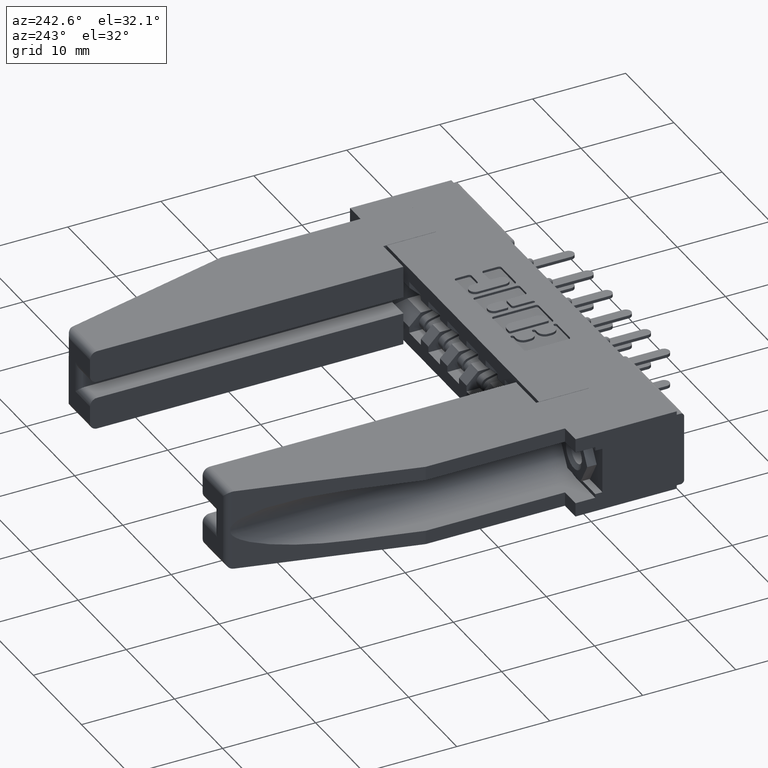
[diagram: clean part render]
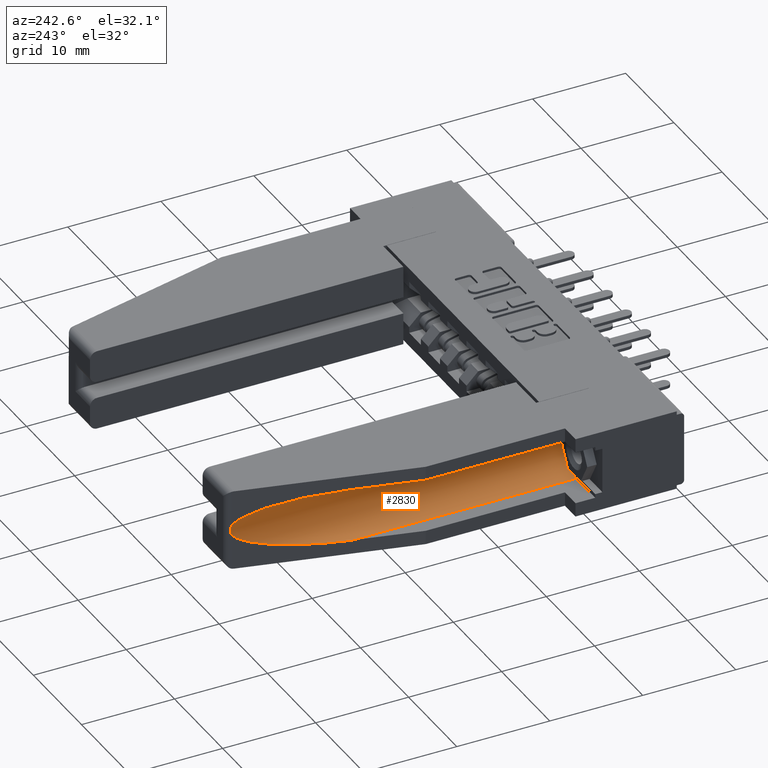
[diagram: same view with one face highlighted and labeled with its STEP entity id]
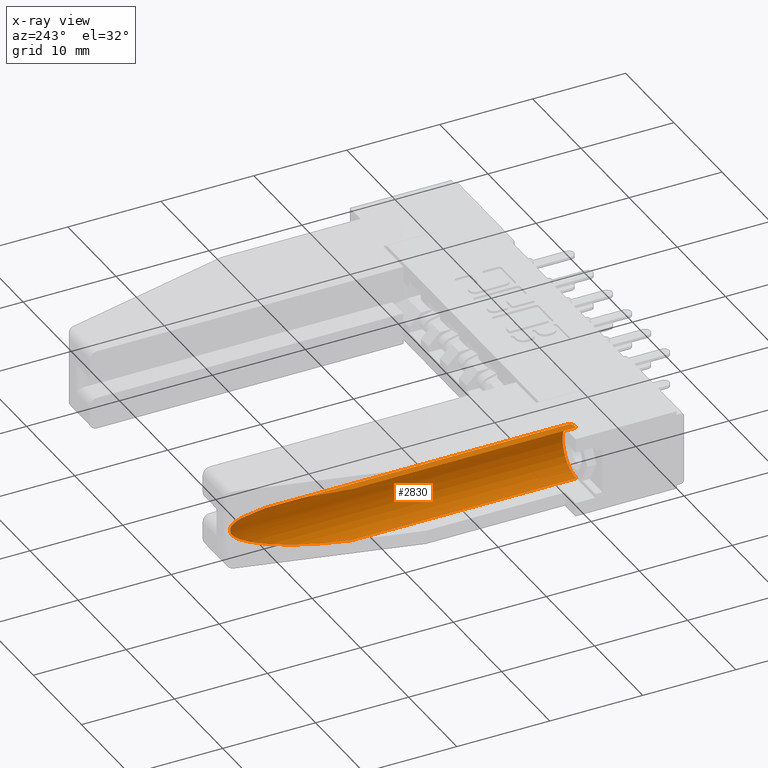
[diagram: x-ray of the same camera — body ghosted, the highlighted face saturated]
A machine part, auxiliary view. The second image highlights one B-rep face of the part: STEP entity #2830.
The next image is the same camera in x-ray: the body ghosted, the highlighted face saturated — about 0% of this face is hidden behind the body in this view.
In plain terms, the highlighted cylindrical surface (edge-blend (fillet) strip) has radius 2.8575 mm, axis along (0, 1, 0).
Its self-contained STEP definition (entity closure, byte-faithful):
#39 = VECTOR ( 'NONE', #8353, 39.37007874015748100 ) ;
#211 = CARTESIAN_POINT ( 'NONE',  ( 0.2545055604987769800, 1.483130650670717600, -0.2483528604797780900 ) ) ;
#362 = VERTEX_POINT ( 'NONE', #955 ) ;
#403 = CARTESIAN_POINT ( 'NONE',  ( 0.2665402951778601500, 1.530919410688852400, -0.1563644579457770200 ) ) ;
#581 = CARTESIAN_POINT ( 'NONE',  ( 0.2653722146876837400, 1.527184654139258400, -0.1932766899444302300 ) ) ;
#955 = CARTESIAN_POINT ( 'NONE',  ( 0.2653722146876837400, 1.527184654139258400, -0.1497233100555697400 ) ) ;
#1461 = CARTESIAN_POINT ( 'NONE',  ( 0.2659676665268745400, 1.529598648082111800, -0.1902587226409276400 ) ) ;
#2208 = EDGE_LOOP ( 'NONE', ( #5024, #3596, #8116, #13106, #12281, #12126 ) ) ;
#2214 = AXIS2_PLACEMENT_3D ( 'NONE', #4562, #4650, #5507 ) ;
#2235 = DIRECTION ( 'NONE',  ( -0.0000000000000000000, 1.000000000000000000, -0.0000000000000000000 ) ) ;
#2518 =( BOUNDED_CURVE ( )  B_SPLINE_CURVE ( 3, ( #10164, #6280, #9148, #10289 ),
 .UNSPECIFIED., .F., .F. ) 
 B_SPLINE_CURVE_WITH_KNOTS ( ( 4, 4 ),
 ( 4.712388980384689700, 6.088385046520238900 ),
 .UNSPECIFIED. ) 
 CURVE ( )  GEOMETRIC_REPRESENTATION_ITEM ( )  RATIONAL_B_SPLINE_CURVE ( ( 1.000000000000000000, 0.8483458633392274600, 0.8483458633392274600, 1.000000000000000000 ) ) 
 REPRESENTATION_ITEM ( '' )  );
#2605 = CARTESIAN_POINT ( 'NONE',  ( 0.2653722146876837400, 1.527184654139258400, -0.1932766899444302300 ) ) ;
#2830 = ADVANCED_FACE ( 'NONE', ( #7883 ), #11874, .F. ) ;
#2966 = EDGE_CURVE ( 'NONE', #11139, #13037, #7865, .T. ) ;
#3427 = CARTESIAN_POINT ( 'NONE',  ( 0.2672997671973894600, 1.532692632294005800, -0.1791713265570003500 ) ) ;
#3481 = VECTOR ( 'NONE', #9892, 39.37007874015748100 ) ;
#3596 = ORIENTED_EDGE ( 'NONE', *, *, #8038, .T. ) ;
#3699 = VERTEX_POINT ( 'NONE', #2605 ) ;
#4391 = CARTESIAN_POINT ( 'NONE',  ( 0.1550000000000000300, -0.3075443462566659300, -0.1715000000000000100 ) ) ;
#4443 = LINE ( 'NONE', #7880, #3481 ) ;
#4562 = CARTESIAN_POINT ( 'NONE',  ( 0.1550000000000000300, 0.1259999999999999700, -0.1715000000000000100 ) ) ;
#4650 = DIRECTION ( 'NONE',  ( -0.0000000000000000000, -1.000000000000000000, -0.0000000000000000000 ) ) ;
#4985 = VERTEX_POINT ( 'NONE', #10044 ) ;
#5024 = ORIENTED_EDGE ( 'NONE', *, *, #5127, .T. ) ;
#5127 = EDGE_CURVE ( 'NONE', #4985, #362, #2518, .T. ) ;
#5349 = CARTESIAN_POINT ( 'NONE',  ( 0.2111379438000716400, 1.307315988378668500, -0.2840000000000000300 ) ) ;
#5474 = LINE ( 'NONE', #8307, #39 ) ;
#5507 = DIRECTION ( 'NONE',  ( 0.0000000000000000000, 0.0000000000000000000, 1.000000000000000000 ) ) ;
#5677 = CARTESIAN_POINT ( 'NONE',  ( 0.2674994877860725800, 1.533077309800847700, -0.1676292255492849700 ) ) ;
#5907 = B_SPLINE_CURVE_WITH_KNOTS ( 'NONE', 3,
 ( #6538, #8726, #403, #10716, #5677, #12682, #3427, #8598, #1461, #581 ),
 .UNSPECIFIED., .F., .F.,
 ( 4, 2, 2, 2, 4 ),
 ( 8.673617379884035500E-019, 0.0002913334948949183500, 0.0005826669897898358300, 0.0008740004846847532600, 0.001165333979579670800 ),
 .UNSPECIFIED. ) ;
#6280 = CARTESIAN_POINT ( 'NONE',  ( 0.2111379438000715000, 1.307315988378668500, -0.05900000000000001800 ) ) ;
#6375 = DIRECTION ( 'NONE',  ( 0.0000000000000000000, 0.0000000000000000000, 1.000000000000000000 ) ) ;
#6504 = CARTESIAN_POINT ( 'NONE',  ( 0.1550000000000000000, 1.079729729729729500, -0.2839999999999999700 ) ) ;
#6538 = CARTESIAN_POINT ( 'NONE',  ( 0.2653722146876837400, 1.527184654139258400, -0.1497233100555697400 ) ) ;
#7031 = VERTEX_POINT ( 'NONE', #6504 ) ;
#7865 = CIRCLE ( 'NONE', #2214, 0.1124999999999999800 ) ;
#7880 = CARTESIAN_POINT ( 'NONE',  ( 0.1550000000000000000, -0.3075443462566659300, -0.2839999999999999700 ) ) ;
#7883 = FACE_OUTER_BOUND ( 'NONE', #2208, .T. ) ;
#7982 = AXIS2_PLACEMENT_3D ( 'NONE', #4391, #2235, #6375 ) ;
#8038 = EDGE_CURVE ( 'NONE', #362, #3699, #5907, .T. ) ;
#8116 = ORIENTED_EDGE ( 'NONE', *, *, #10083, .T. ) ;
#8307 = CARTESIAN_POINT ( 'NONE',  ( 0.1550000000000000000, -0.3075443462566659300, -0.05900000000000003200 ) ) ;
#8353 = DIRECTION ( 'NONE',  ( -0.0000000000000000000, 1.000000000000000000, -0.0000000000000000000 ) ) ;
#8409 = CARTESIAN_POINT ( 'NONE',  ( 0.1550000000000000000, 1.079729729729729500, -0.2839999999999999700 ) ) ;
#8598 = CARTESIAN_POINT ( 'NONE',  ( 0.2665477326809419000, 1.530937437894279700, -0.1865728330937866900 ) ) ;
#8726 = CARTESIAN_POINT ( 'NONE',  ( 0.2659695340301833100, 1.529606219041284000, -0.1527507425476382100 ) ) ;
#8865 = CARTESIAN_POINT ( 'NONE',  ( 0.1550000000000000000, 0.1259999999999999700, -0.2839999999999999700 ) ) ;
#9024 = EDGE_CURVE ( 'NONE', #13037, #4985, #5474, .T. ) ;
#9148 = CARTESIAN_POINT ( 'NONE',  ( 0.2545055604987769800, 1.483130650670717600, -0.09464713952022194000 ) ) ;
#9892 = DIRECTION ( 'NONE',  ( -0.0000000000000000000, 1.000000000000000000, -0.0000000000000000000 ) ) ;
#10044 = CARTESIAN_POINT ( 'NONE',  ( 0.1550000000000000000, 1.079729729729729500, -0.05900000000000003900 ) ) ;
#10083 = EDGE_CURVE ( 'NONE', #3699, #7031, #10891, .T. ) ;
#10164 = CARTESIAN_POINT ( 'NONE',  ( 0.1550000000000000000, 1.079729729729729500, -0.05900000000000003900 ) ) ;
#10289 = CARTESIAN_POINT ( 'NONE',  ( 0.2653722146876837400, 1.527184654139258400, -0.1497233100555697400 ) ) ;
#10716 = CARTESIAN_POINT ( 'NONE',  ( 0.2673007932318817700, 1.532695689982142700, -0.1638283690697845100 ) ) ;
#10772 = CARTESIAN_POINT ( 'NONE',  ( 0.1550000000000000300, 0.1259999999999999700, -0.05900000000000002500 ) ) ;
#10891 =( BOUNDED_CURVE ( )  B_SPLINE_CURVE ( 3, ( #12405, #211, #5349, #8409 ),
 .UNSPECIFIED., .F., .F. ) 
 B_SPLINE_CURVE_WITH_KNOTS ( ( 4, 4 ),
 ( 0.1948002606593472700, 1.570796326794896600 ),
 .UNSPECIFIED. ) 
 CURVE ( )  GEOMETRIC_REPRESENTATION_ITEM ( )  RATIONAL_B_SPLINE_CURVE ( ( 1.000000000000000000, 0.8483458633392274600, 0.8483458633392274600, 1.000000000000000000 ) ) 
 REPRESENTATION_ITEM ( '' )  );
#11139 = VERTEX_POINT ( 'NONE', #8865 ) ;
#11874 = CYLINDRICAL_SURFACE ( 'NONE', #7982, 0.1124999999999999800 ) ;
#12126 = ORIENTED_EDGE ( 'NONE', *, *, #9024, .T. ) ;
#12281 = ORIENTED_EDGE ( 'NONE', *, *, #2966, .T. ) ;
#12405 = CARTESIAN_POINT ( 'NONE',  ( 0.2653722146876837400, 1.527184654139258400, -0.1932766899444302300 ) ) ;
#12682 = CARTESIAN_POINT ( 'NONE',  ( 0.2675005102363445800, 1.533079420563984800, -0.1753409430533595100 ) ) ;
#13037 = VERTEX_POINT ( 'NONE', #10772 ) ;
#13055 = EDGE_CURVE ( 'NONE', #11139, #7031, #4443, .T. ) ;
#13106 = ORIENTED_EDGE ( 'NONE', *, *, #13055, .F. ) ;